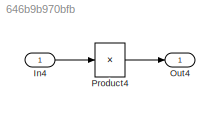
MODEL slx_646b9b970bfb
KIND model
CONFIG AbsTol = auto
CONFIG EnableMultiTasking = on
CONFIG FixedStep = 0.1
CONFIG MaxStep = auto
CONFIG MinStep = auto
CONFIG RelTol = 1e-3
CONFIG SampleTimeConstraint = Unconstrained
CONFIG Solver = FixedStepAuto
CONFIG SolverName = FixedStepAuto
CONFIG StartTime = 0.0
CONFIG StopTime = 10.0
BLOCK [Inport] In4
  IconDisplay = Port number
BLOCK [Outport] Out4
  IconDisplay = Port number
BLOCK [Product] Product4
  InputSameDT = off
  Inputs = /
  OutDataTypeStr = Inherit: Inherit via internal rule
  Ports = [1, 1]
  SaturateOnIntegerOverflow = off
LINE In4:1 -> Product4:1
LINE Product4:1 -> Out4:1
